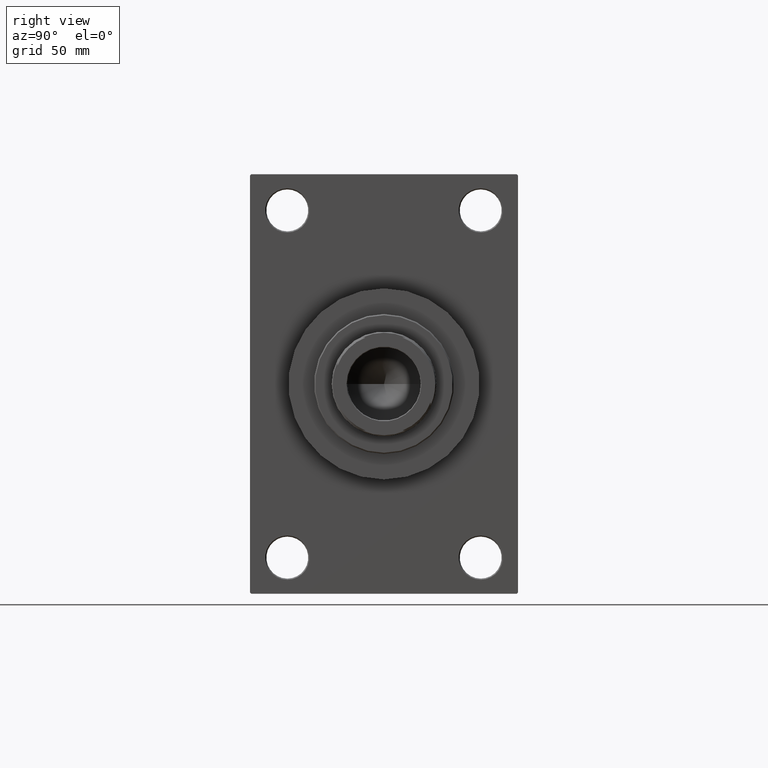
[diagram: clean part render]
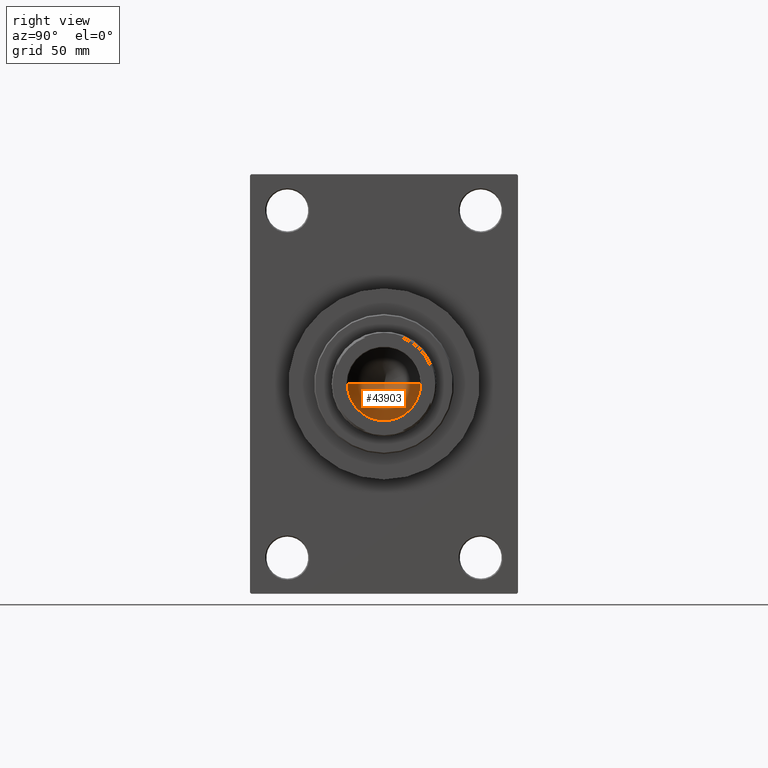
[diagram: same view with one face highlighted and labeled with its STEP entity id]
A machine part, right view. The second image highlights one B-rep face of the part: STEP entity #43903.
In plain terms, the highlighted conical surface has half-angle 59 deg.
Its self-contained STEP definition (entity closure, byte-faithful):
#429 = CARTESIAN_POINT ( 'NONE',  ( 15.74999999999998934, 0.000000000000000000, 111.0000000000000000 ) ) ;
#2836 = AXIS2_PLACEMENT_3D ( 'NONE', #3094, #43091, #29350 ) ;
#3094 = CARTESIAN_POINT ( 'NONE',  ( 0.000000000000000000, 0.000000000000000000, 111.0000000000000000 ) ) ;
#3654 = CONICAL_SURFACE ( 'NONE', #2836, 15.74999999999998934, 1.029744258676652979 ) ;
#4286 = LINE ( 'NONE', #429, #5797 ) ;
#5797 = VECTOR ( 'NONE', #26451, 1000.000000000000000 ) ;
#7171 = EDGE_LOOP ( 'NONE', ( #31611, #34953, #44153 ) ) ;
#7173 = FACE_OUTER_BOUND ( 'NONE', #7171, .T. ) ;
#7316 = VECTOR ( 'NONE', #20216, 1000.000000000000000 ) ;
#7472 = CARTESIAN_POINT ( 'NONE',  ( 15.74999999999998934, 0.000000000000000000, 111.0000000000000000 ) ) ;
#7675 = VERTEX_POINT ( 'NONE', #30490 ) ;
#7942 = CARTESIAN_POINT ( 'NONE',  ( -1.584115414415908206E-14, 0.000000000000000000, 101.5364452503159072 ) ) ;
#12084 = DIRECTION ( 'NONE',  ( -0.000000000000000000, -0.000000000000000000, 1.000000000000000000 ) ) ;
#15565 = EDGE_CURVE ( 'NONE', #36900, #7675, #34717, .T. ) ;
#20216 = DIRECTION ( 'NONE',  ( -0.8571673007021115565, 1.049727191138617710E-16, 0.5150380749100554878 ) ) ;
#22702 = DIRECTION ( 'NONE',  ( 1.000000000000000000, 0.000000000000000000, 0.000000000000000000 ) ) ;
#26451 = DIRECTION ( 'NONE',  ( 0.8571673007021115565, 0.000000000000000000, 0.5150380749100554878 ) ) ;
#27442 = LINE ( 'NONE', #38514, #7316 ) ;
#29350 = DIRECTION ( 'NONE',  ( 1.000000000000000000, 0.000000000000000000, 0.000000000000000000 ) ) ;
#30390 = CARTESIAN_POINT ( 'NONE',  ( 0.000000000000000000, 0.000000000000000000, 111.0000000000000000 ) ) ;
#30490 = CARTESIAN_POINT ( 'NONE',  ( -15.74999999999998934, 1.928818708657080161E-15, 111.0000000000000000 ) ) ;
#31611 = ORIENTED_EDGE ( 'NONE', *, *, #36109, .F. ) ;
#34717 = CIRCLE ( 'NONE', #40101, 15.74999999999998934 ) ;
#34953 = ORIENTED_EDGE ( 'NONE', *, *, #37251, .T. ) ;
#36109 = EDGE_CURVE ( 'NONE', #36888, #7675, #27442, .T. ) ;
#36888 = VERTEX_POINT ( 'NONE', #7942 ) ;
#36900 = VERTEX_POINT ( 'NONE', #7472 ) ;
#37251 = EDGE_CURVE ( 'NONE', #36888, #36900, #4286, .T. ) ;
#38514 = CARTESIAN_POINT ( 'NONE',  ( -15.74999999999998934, 1.928818708657080161E-15, 111.0000000000000000 ) ) ;
#40101 = AXIS2_PLACEMENT_3D ( 'NONE', #30390, #12084, #22702 ) ;
#43091 = DIRECTION ( 'NONE',  ( -0.000000000000000000, -0.000000000000000000, 1.000000000000000000 ) ) ;
#43903 = ADVANCED_FACE ( 'NONE', ( #7173 ), #3654, .F. ) ;
#44153 = ORIENTED_EDGE ( 'NONE', *, *, #15565, .T. ) ;